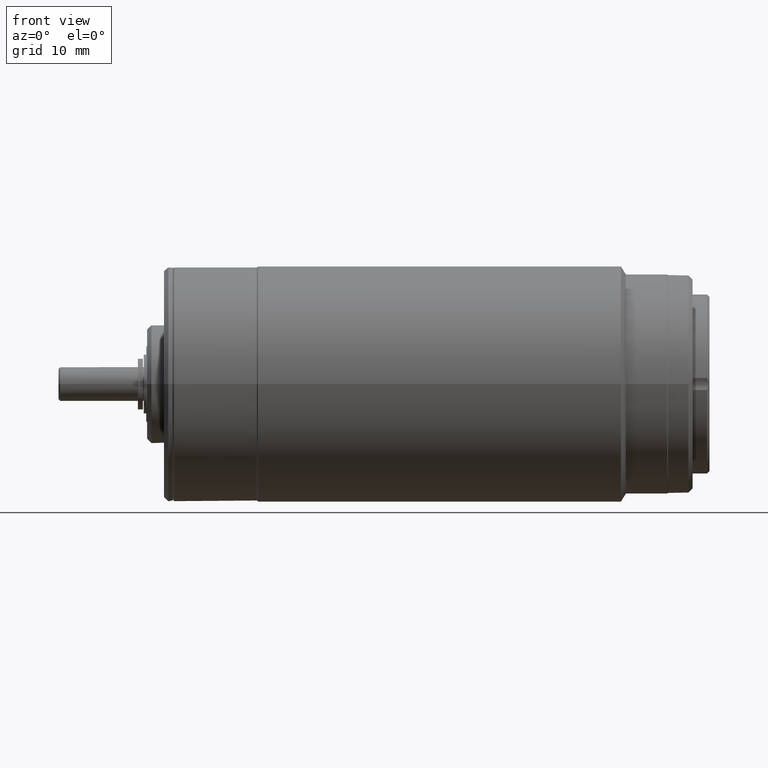
[diagram: clean part render]
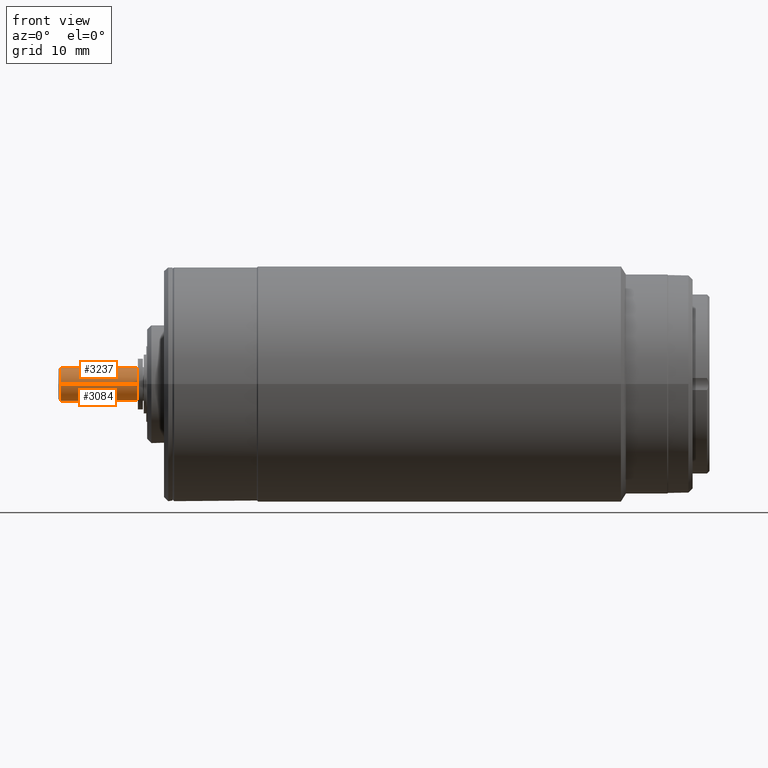
[diagram: same view with one multi-face feature highlighted, each face labeled with its STEP entity id]
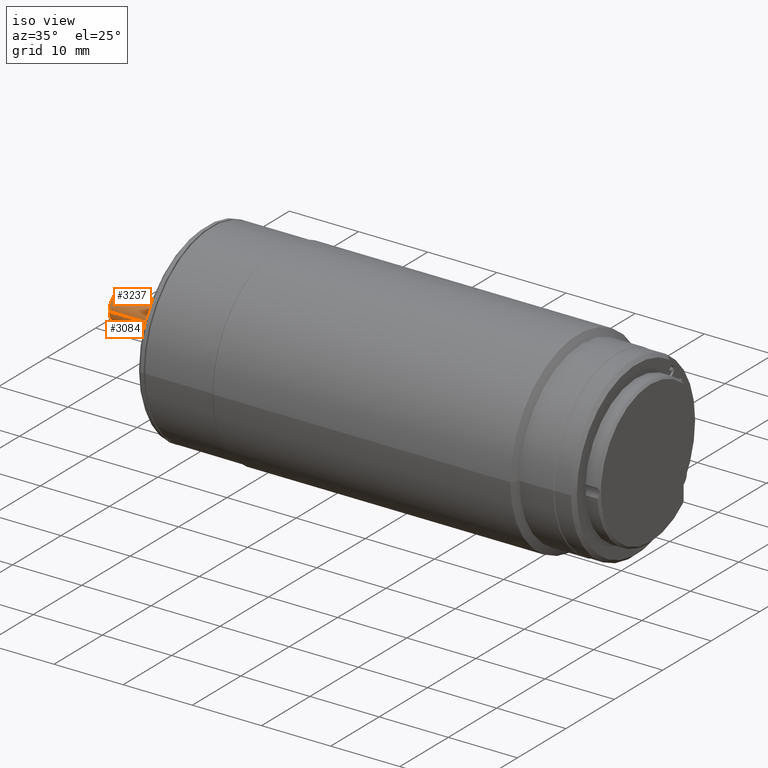
[diagram: same view with one multi-face feature highlighted, each face labeled with its STEP entity id]
A machine part, front view. The highlighted faces form ONE feature: a constant-radius fillet chain: 2 tangent blend faces with common blend radius 2 mm. The faces share edges in the B-rep.
A second angle (iso view) of the same feature is appended — it is thin or edge-on in the first view.
Their STEP definitions:
[1] entity #3237 (Cylinder):
#942=CARTESIAN_POINT('',(-3.275E1,0.E0,0.E0));
#943=DIRECTION('',(-1.E0,0.E0,0.E0));
#944=DIRECTION('',(0.E0,-1.E0,0.E0));
#945=AXIS2_PLACEMENT_3D('',#942,#943,#944);
#980=CARTESIAN_POINT('',(-3.285E1,0.E0,0.E0));
#981=DIRECTION('',(1.E0,0.E0,0.E0));
#982=DIRECTION('',(0.E0,7.912417332242E-1,6.115034910811E-1));
#983=AXIS2_PLACEMENT_3D('',#980,#981,#982);
#1000=CARTESIAN_POINT('',(-3.285E1,0.E0,0.E0));
#1001=DIRECTION('',(1.E0,0.E0,0.E0));
#1002=DIRECTION('',(0.E0,-9.055779711902E-1,4.241798416888E-1));
#1003=AXIS2_PLACEMENT_3D('',#1000,#1001,#1002);
#1054=CARTESIAN_POINT('',(-3.345E1,0.E0,0.E0));
#1055=DIRECTION('',(-1.E0,0.E0,0.E0));
#1056=DIRECTION('',(0.E0,-1.E0,8.454348332521E-14));
#1057=AXIS2_PLACEMENT_3D('',#1054,#1055,#1056);
#1074=CARTESIAN_POINT('',(-3.345E1,0.E0,0.E0));
#1075=DIRECTION('',(-1.E0,0.E0,0.E0));
#1076=DIRECTION('',(0.E0,-2.926602185561E-1,9.562165008379E-1));
#1077=AXIS2_PLACEMENT_3D('',#1074,#1075,#1076);
#1123=DIRECTION('',(-1.E0,1.973995121172E-10,-1.108358569836E-9));
#1124=VECTOR('',#1123,9.200000003635E0);
#1125=CARTESIAN_POINT('',(-3.345E1,-2.E0,-6.851276931425E-9));
#1126=LINE('',#1125,#1124);
#1127=DIRECTION('',(1.E0,1.834417690027E-10,-1.202997506904E-9));
#1128=VECTOR('',#1127,9.900000003635E0);
#1129=CARTESIAN_POINT('',(-4.265000000364E1,1.999999998184E0,
1.190967548601E-8));
#1130=LINE('',#1129,#1128);
#1131=DIRECTION('',(-1.E0,0.E0,-1.131687336435E-12));
#1132=VECTOR('',#1131,9.999999999999E-2);
#1133=CARTESIAN_POINT('',(-3.275E1,-2.E0,0.E0));
#1134=LINE('',#1133,#1132);
#1135=DIRECTION('',(1.E0,6.106226635438E-14,-1.576516694968E-13));
#1136=VECTOR('',#1135,6.E-1);
#1137=CARTESIAN_POINT('',(-3.345E1,-1.811155942380E0,8.483596833775E-1));
#1138=LINE('',#1137,#1136);
#1143=DIRECTION('',(-1.E0,2.146431180942E-14,-1.480297366167E-14));
#1144=VECTOR('',#1143,6.E-1);
#1145=CARTESIAN_POINT('',(-3.285E1,-5.853204371122E-1,1.912433001676E0));
#1146=LINE('',#1145,#1144);
#1151=CARTESIAN_POINT('',(-4.265E1,3.195153835429E-14,0.E0));
#1152=DIRECTION('',(1.E0,0.E0,0.E0));
#1153=DIRECTION('',(0.E0,1.E0,0.E0));
#1154=AXIS2_PLACEMENT_3D('',#1151,#1152,#1153);
#1189=DIRECTION('',(1.E0,-1.968795497002E-13,-1.358172833458E-13));
#1190=VECTOR('',#1189,6.E-1);
#1191=CARTESIAN_POINT('',(-3.345E1,1.582483466448E0,1.223006982162E0));
#1192=LINE('',#1191,#1190);
#1661=CARTESIAN_POINT('',(-3.285E1,-2.E0,-1.698641227676E-13));
#1663=VERTEX_POINT('',#1661);
#1665=CARTESIAN_POINT('',(-3.275E1,2.E0,0.E0));
#1666=CARTESIAN_POINT('',(-3.275E1,-2.E0,0.E0));
#1667=VERTEX_POINT('',#1665);
#1668=VERTEX_POINT('',#1666);
#1670=CARTESIAN_POINT('',(-4.265E1,2.000000000002E0,0.E0));
#1672=VERTEX_POINT('',#1670);
#1673=CARTESIAN_POINT('',(-4.265E1,-2.000000000002E0,0.E0));
#1674=VERTEX_POINT('',#1673);
#1676=CARTESIAN_POINT('',(-3.345E1,-2.E0,1.690869666504E-13));
#1678=VERTEX_POINT('',#1676);
#1689=CARTESIAN_POINT('',(-3.285E1,1.582483466448E0,1.223006982162E0));
#1690=VERTEX_POINT('',#1689);
#1709=CARTESIAN_POINT('',(-3.345E1,1.582483466448E0,1.223006982162E0));
#1711=VERTEX_POINT('',#1709);
#1719=CARTESIAN_POINT('',(-3.285E1,-1.811155942380E0,8.483596833775E-1));
#1720=VERTEX_POINT('',#1719);
#1721=CARTESIAN_POINT('',(-3.345E1,-1.811155942380E0,8.483596833775E-1));
#1722=VERTEX_POINT('',#1721);
#1723=CARTESIAN_POINT('',(-3.285E1,-5.853204371122E-1,1.912433001676E0));
#1724=VERTEX_POINT('',#1723);
#1725=CARTESIAN_POINT('',(-3.345E1,-5.853204371122E-1,1.912433001676E0));
#1726=VERTEX_POINT('',#1725);
#3212=CARTESIAN_POINT('',(-3.2552E1,0.E0,0.E0));
#3213=DIRECTION('',(-1.E0,0.E0,0.E0));
#3214=DIRECTION('',(0.E0,1.E0,0.E0));
#3215=AXIS2_PLACEMENT_3D('',#3212,#3213,#3214);
#3216=CYLINDRICAL_SURFACE('',#3215,2.E0);
#3217=ORIENTED_EDGE('',*,*,#3111,.F.);
#3219=ORIENTED_EDGE('',*,*,#3218,.F.);
#3220=ORIENTED_EDGE('',*,*,#3150,.F.);
#3221=ORIENTED_EDGE('',*,*,#3066,.T.);
#3223=ORIENTED_EDGE('',*,*,#3222,.F.);
#3224=ORIENTED_EDGE('',*,*,#3060,.T.);
#3225=ORIENTED_EDGE('',*,*,#3045,.F.);
#3226=ORIENTED_EDGE('',*,*,#3057,.T.);
#3227=EDGE_LOOP('',(#3217,#3219,#3220,#3221,#3223,#3224,#3225,#3226));
#3228=FACE_OUTER_BOUND('',#3227,.F.);
#3229=ORIENTED_EDGE('',*,*,#3103,.F.);
#3231=ORIENTED_EDGE('',*,*,#3230,.F.);
#3232=ORIENTED_EDGE('',*,*,#3158,.F.);
#3234=ORIENTED_EDGE('',*,*,#3233,.F.);
#3235=EDGE_LOOP('',(#3229,#3231,#3232,#3234));
#3236=FACE_BOUND('',#3235,.F.);
#3237=ADVANCED_FACE('',(#3228,#3236),#3216,.T.);
#946=CIRCLE('',#945,2.E0);
#984=CIRCLE('',#983,2.E0);
#1004=CIRCLE('',#1003,2.E0);
#1058=CIRCLE('',#1057,2.E0);
#1078=CIRCLE('',#1077,2.E0);
#1155=CIRCLE('',#1154,2.000000000002E0);
#3045=EDGE_CURVE('',#1668,#1667,#946,.T.);
#3057=EDGE_CURVE('',#1668,#1663,#1134,.T.);
#3060=EDGE_CURVE('',#1672,#1667,#1130,.T.);
#3066=EDGE_CURVE('',#1678,#1674,#1126,.T.);
#3103=EDGE_CURVE('',#1690,#1724,#984,.T.);
#3111=EDGE_CURVE('',#1720,#1663,#1004,.T.);
#3150=EDGE_CURVE('',#1678,#1722,#1058,.T.);
#3158=EDGE_CURVE('',#1726,#1711,#1078,.T.);
#3218=EDGE_CURVE('',#1722,#1720,#1138,.T.);
#3222=EDGE_CURVE('',#1672,#1674,#1155,.T.);
#3230=EDGE_CURVE('',#1711,#1690,#1192,.T.);
#3233=EDGE_CURVE('',#1724,#1726,#1146,.T.);
[2] entity #3084 (Cylinder):
#937=CARTESIAN_POINT('',(-3.275E1,0.E0,0.E0));
#938=DIRECTION('',(-1.E0,0.E0,0.E0));
#939=DIRECTION('',(0.E0,1.E0,0.E0));
#940=AXIS2_PLACEMENT_3D('',#937,#938,#939);
#947=CARTESIAN_POINT('',(-3.285E1,0.E0,0.E0));
#948=DIRECTION('',(1.E0,0.E0,0.E0));
#949=DIRECTION('',(0.E0,-2.926602185561E-1,-9.562165008379E-1));
#950=AXIS2_PLACEMENT_3D('',#947,#948,#949);
#1005=CARTESIAN_POINT('',(-3.285E1,0.E0,0.E0));
#1006=DIRECTION('',(1.E0,0.E0,0.E0));
#1007=DIRECTION('',(0.E0,-1.E0,-8.493206138382E-14));
#1008=AXIS2_PLACEMENT_3D('',#1005,#1006,#1007);
#1025=DIRECTION('',(-1.E0,-1.591319668629E-14,-2.109423746788E-14));
#1026=VECTOR('',#1025,6.E-1);
#1027=CARTESIAN_POINT('',(-3.285E1,1.582483466448E0,-1.223006982162E0));
#1028=LINE('',#1027,#1026);
#1029=CARTESIAN_POINT('',(-3.345E1,0.E0,0.E0));
#1030=DIRECTION('',(-1.E0,0.E0,0.E0));
#1031=DIRECTION('',(0.E0,7.912417332241E-1,-6.115034910812E-1));
#1032=AXIS2_PLACEMENT_3D('',#1029,#1030,#1031);
#1049=CARTESIAN_POINT('',(-3.345E1,0.E0,0.E0));
#1050=DIRECTION('',(-1.E0,0.E0,0.E0));
#1051=DIRECTION('',(0.E0,-9.055779711902E-1,-4.241798416888E-1));
#1052=AXIS2_PLACEMENT_3D('',#1049,#1050,#1051);
#1107=DIRECTION('',(1.E0,-2.368475785867E-14,0.E0));
#1108=VECTOR('',#1107,6.E-1);
#1109=CARTESIAN_POINT('',(-3.345E1,-5.853204371122E-1,-1.912433001676E0));
#1110=LINE('',#1109,#1108);
#1115=DIRECTION('',(-1.E0,6.513308411134E-14,1.728247175E-13));
#1116=VECTOR('',#1115,6.E-1);
#1117=CARTESIAN_POINT('',(-3.285E1,-1.811155942380E0,-8.483596833775E-1));
#1118=LINE('',#1117,#1116);
#1123=DIRECTION('',(-1.E0,1.973995121172E-10,-1.108358569836E-9));
#1124=VECTOR('',#1123,9.200000003635E0);
#1125=CARTESIAN_POINT('',(-3.345E1,-2.E0,-6.851276931425E-9));
#1126=LINE('',#1125,#1124);
#1127=DIRECTION('',(1.E0,1.834417690027E-10,-1.202997506904E-9));
#1128=VECTOR('',#1127,9.900000003635E0);
#1129=CARTESIAN_POINT('',(-4.265000000364E1,1.999999998184E0,
1.190967548601E-8));
#1130=LINE('',#1129,#1128);
#1131=DIRECTION('',(-1.E0,0.E0,-1.131687336435E-12));
#1132=VECTOR('',#1131,9.999999999999E-2);
#1133=CARTESIAN_POINT('',(-3.275E1,-2.E0,0.E0));
#1134=LINE('',#1133,#1132);
#1175=CARTESIAN_POINT('',(-4.265E1,-3.177526325919E-14,0.E0));
#1176=DIRECTION('',(1.E0,0.E0,0.E0));
#1177=DIRECTION('',(0.E0,-1.E0,0.E0));
#1178=AXIS2_PLACEMENT_3D('',#1175,#1176,#1177);
#1180=CARTESIAN_POINT('',(-4.265E1,-3.177526325919E-14,0.E0));
#1181=DIRECTION('',(1.E0,0.E0,0.E0));
#1182=DIRECTION('',(0.E0,-7.109262116106E-14,-1.E0));
#1183=AXIS2_PLACEMENT_3D('',#1180,#1181,#1182);
#1653=CARTESIAN_POINT('',(-3.285E1,-5.853204371122E-1,-1.912433001676E0));
#1654=CARTESIAN_POINT('',(-3.285E1,1.582483466448E0,-1.223006982162E0));
#1655=VERTEX_POINT('',#1653);
#1656=VERTEX_POINT('',#1654);
#1657=CARTESIAN_POINT('',(-3.345E1,-5.853204371122E-1,-1.912433001676E0));
#1658=VERTEX_POINT('',#1657);
#1659=CARTESIAN_POINT('',(-3.345E1,1.582483466448E0,-1.223006982162E0));
#1660=VERTEX_POINT('',#1659);
#1661=CARTESIAN_POINT('',(-3.285E1,-2.E0,-1.698641227676E-13));
#1662=CARTESIAN_POINT('',(-3.285E1,-1.811155942380E0,-8.483596833775E-1));
#1663=VERTEX_POINT('',#1661);
#1664=VERTEX_POINT('',#1662);
#1665=CARTESIAN_POINT('',(-3.275E1,2.E0,0.E0));
#1666=CARTESIAN_POINT('',(-3.275E1,-2.E0,0.E0));
#1667=VERTEX_POINT('',#1665);
#1668=VERTEX_POINT('',#1666);
#1669=CARTESIAN_POINT('',(-4.265E1,-1.739605055814E-13,-2.000000000002E0));
#1670=CARTESIAN_POINT('',(-4.265E1,2.000000000002E0,0.E0));
#1671=VERTEX_POINT('',#1669);
#1672=VERTEX_POINT('',#1670);
#1673=CARTESIAN_POINT('',(-4.265E1,-2.000000000002E0,0.E0));
#1674=VERTEX_POINT('',#1673);
#1675=CARTESIAN_POINT('',(-3.345E1,-1.811155942380E0,-8.483596833775E-1));
#1676=CARTESIAN_POINT('',(-3.345E1,-2.E0,1.690869666504E-13));
#1677=VERTEX_POINT('',#1675);
#1678=VERTEX_POINT('',#1676);
#3050=CARTESIAN_POINT('',(-3.2552E1,0.E0,0.E0));
#3051=DIRECTION('',(-1.E0,0.E0,0.E0));
#3052=DIRECTION('',(0.E0,1.E0,0.E0));
#3053=AXIS2_PLACEMENT_3D('',#3050,#3051,#3052);
#3054=CYLINDRICAL_SURFACE('',#3053,2.E0);
#3056=ORIENTED_EDGE('',*,*,#3055,.F.);
#3058=ORIENTED_EDGE('',*,*,#3057,.F.);
#3059=ORIENTED_EDGE('',*,*,#3043,.F.);
#3061=ORIENTED_EDGE('',*,*,#3060,.F.);
#3063=ORIENTED_EDGE('',*,*,#3062,.F.);
#3065=ORIENTED_EDGE('',*,*,#3064,.F.);
#3067=ORIENTED_EDGE('',*,*,#3066,.F.);
#3069=ORIENTED_EDGE('',*,*,#3068,.F.);
#3071=ORIENTED_EDGE('',*,*,#3070,.F.);
#3072=EDGE_LOOP('',(#3056,#3058,#3059,#3061,#3063,#3065,#3067,#3069,#3071));
#3073=FACE_OUTER_BOUND('',#3072,.F.);
#3075=ORIENTED_EDGE('',*,*,#3074,.F.);
#3077=ORIENTED_EDGE('',*,*,#3076,.F.);
#3079=ORIENTED_EDGE('',*,*,#3078,.F.);
#3081=ORIENTED_EDGE('',*,*,#3080,.F.);
#3082=EDGE_LOOP('',(#3075,#3077,#3079,#3081));
#3083=FACE_BOUND('',#3082,.F.);
#3084=ADVANCED_FACE('',(#3073,#3083),#3054,.T.);
#941=CIRCLE('',#940,2.E0);
#951=CIRCLE('',#950,2.E0);
#1009=CIRCLE('',#1008,2.E0);
#1033=CIRCLE('',#1032,2.E0);
#1053=CIRCLE('',#1052,2.E0);
#1179=CIRCLE('',#1178,2.000000000002E0);
#1184=CIRCLE('',#1183,2.000000000002E0);
#3043=EDGE_CURVE('',#1667,#1668,#941,.T.);
#3055=EDGE_CURVE('',#1663,#1664,#1009,.T.);
#3057=EDGE_CURVE('',#1668,#1663,#1134,.T.);
#3060=EDGE_CURVE('',#1672,#1667,#1130,.T.);
#3062=EDGE_CURVE('',#1671,#1672,#1184,.T.);
#3064=EDGE_CURVE('',#1674,#1671,#1179,.T.);
#3066=EDGE_CURVE('',#1678,#1674,#1126,.T.);
#3068=EDGE_CURVE('',#1677,#1678,#1053,.T.);
#3070=EDGE_CURVE('',#1664,#1677,#1118,.T.);
#3074=EDGE_CURVE('',#1655,#1656,#951,.T.);
#3076=EDGE_CURVE('',#1658,#1655,#1110,.T.);
#3078=EDGE_CURVE('',#1660,#1658,#1033,.T.);
#3080=EDGE_CURVE('',#1656,#1660,#1028,.T.);